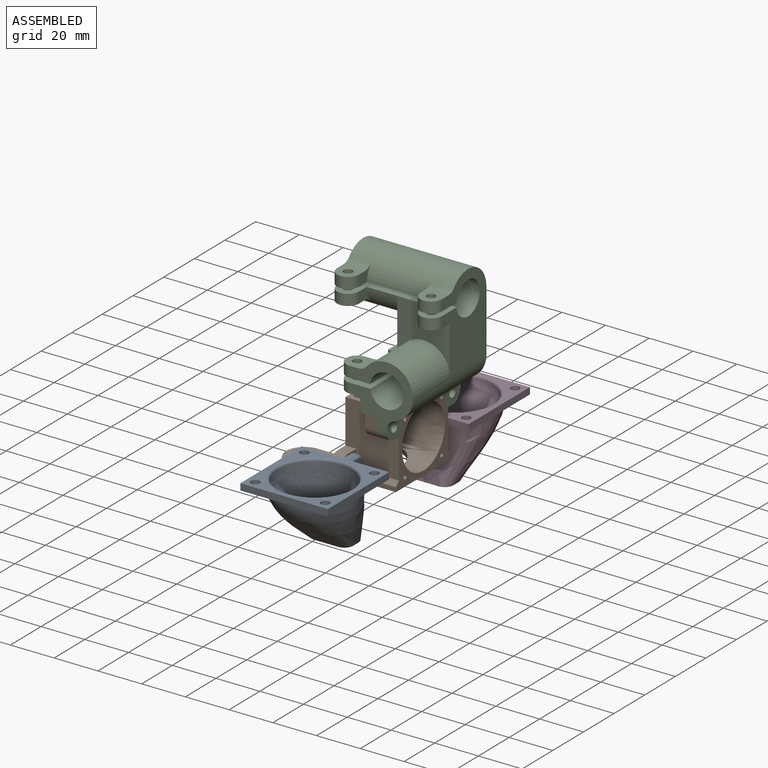
[diagram: assembled view]
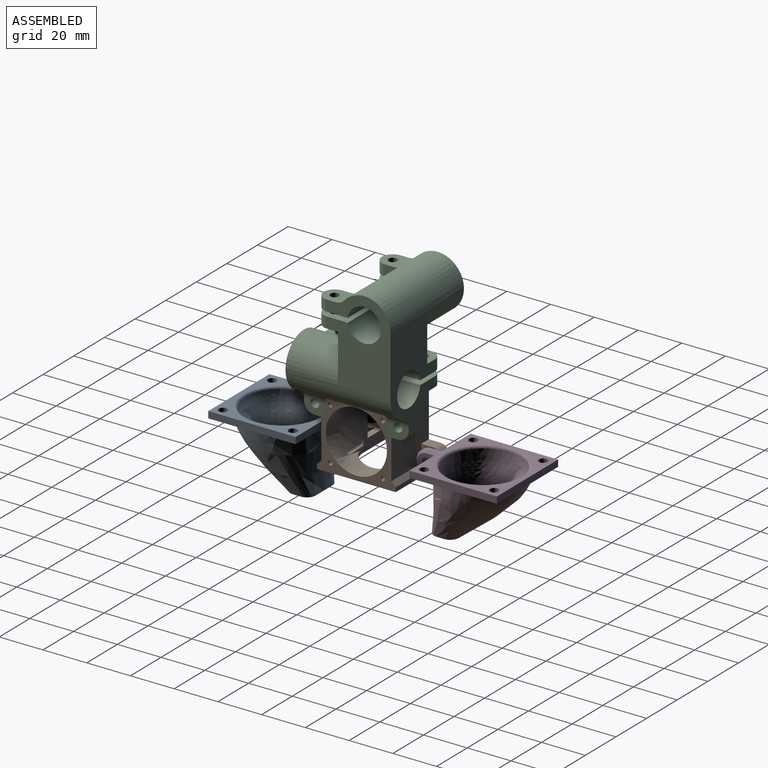
[diagram: assembled view, second angle]
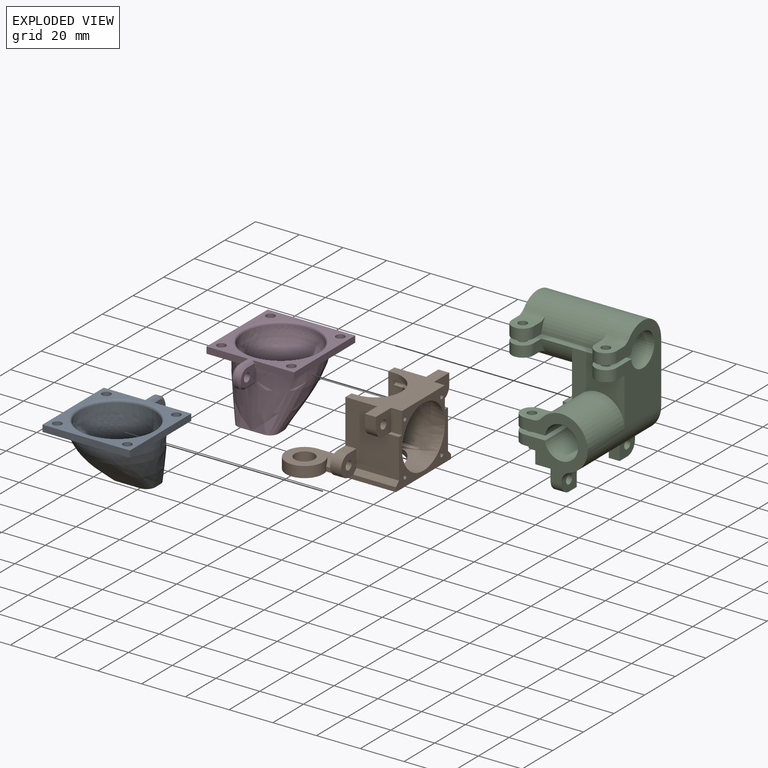
[diagram: exploded view]
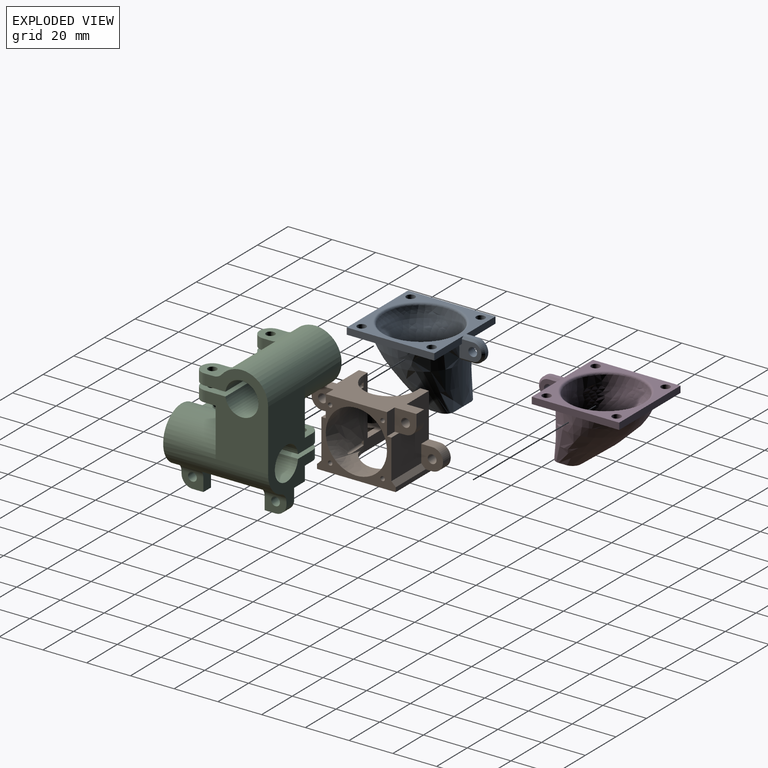
[diagram: exploded view, second angle]
ASSEMBLY  parts=4 mates=3
PART A: 26 faces, bbox 50.5x40.5x30.5 mm
  f0: plane 19x3mm, normal (-1,0,0), area 54.5mm2, adj f1,f3,f10,f16,f20
  f1: plane 45x40mm, normal (0,0,-1), area 543.7mm2, adj f0,f2,f3,f4,f5,f6,f7,f8
  f2: plane 40x3mm, normal (1,0,0), area 120mm2, adj f1,f3,f8,f10
  f3: plane 40x3mm, normal (0,1,0), area 120mm2, adj f0,f1,f2,f10
  f4: plane 19x3mm, normal (-1,0,0), area 54.5mm2, adj f1,f8,f10,f15,f23
  f5: cylinder r=2mm len=4mm, axis (0,0,-1), area 37.7mm2, adj f1,f10
  f6: cylinder r=2mm len=4mm, axis (0,0,-1), area 37.7mm2, adj f1,f10
  f7: cylinder r=2mm len=4mm, axis (0,0,-1), area 37.7mm2, adj f1,f10
  f8: plane 40x3mm, normal (0,-1,0), area 120mm2, adj f1,f2,f4,f10
  f9: cylinder r=2mm len=4mm, axis (0,0,-1), area 37.7mm2, adj f1,f10
  f10: plane 40x40mm, normal (0,0,1), area 429.2mm2, adj f0,f2,f3,f4,f5,f6,f7,f8
  f11: plane 19.51x12.01mm, normal (0,0,1), area 95.7mm2, adj f12,f13
  f12: bspline ~38.02x38mm, area 2753.2mm2, adj f10,f11,f15,f16,f17,f22,f25
  f13: bspline ~34.19x34mm, area 2621.2mm2, adj f11,f14
  f14: bspline ~35.95x35.94mm, area 167.8mm2, adj f1,f13
  f15: plane 10.14x8.03mm, normal (0,-1,0), area 59.2mm2, adj f4,f10,f12,f19,f23,f24,f25
  f16: plane 10.14x8.03mm, normal (0,1,0), area 59.2mm2, adj f0,f10,f12,f19,f20,f21,f22
  f17: plane 6.03x2mm, normal (0,0,1), area 12mm2, adj f12,f18,f22,f25
  f18: cylinder r=5mm len=10mm, axis (0,-1,0), area 31.4mm2, adj f1,f17,f21,f24
  f19: cylinder r=2mm len=4mm, axis (0,-1,0), area 50.3mm2, adj f15,f16
  f20: plane 5x1mm, normal (0,0.71,-0.71), area 7.1mm2, adj f0,f1,f16,f21
  f21: cone r=4mm half-angle=45deg, axis (0,-1,0), area 20mm2, adj f16,f18,f20,f22
  f22: plane 6.12x1.01mm, normal (0,0.71,0.71), area 8.6mm2, adj f12,f16,f17,f21
  f23: plane 5x1mm, normal (0,-0.71,-0.71), area 7.1mm2, adj f1,f4,f15,f24
  f24: cone r=4mm half-angle=45deg, axis (0,1,0), area 20mm2, adj f15,f18,f23,f25
  f25: plane 6.12x1.01mm, normal (0,-0.71,0.71), area 8.6mm2, adj f12,f15,f17,f24
PART B: 61 faces, bbox 55.2x48.7x32.2 mm
  f0: plane 30x14mm, normal (0,1,0), area 183.2mm2, adj f1,f9,f10,f27,f28,f34,f38,f57
  f1: plane 28x24.5mm, normal (1,0,0), area 546mm2, adj f0,f8,f9,f17,f21,f23,f27,f29
  f2: plane 28x24.5mm, normal (-1,0,0), area 546mm2, adj f8,f9,f13,f20,f24,f26,f31,f32
  f3: cylinder r=12mm len=24mm, axis (0,0,-1), area 77.3mm2, adj f10,f12,f14,f41,f42,f43,f47,f52
  f4: cylinder r=12mm len=0.3mm, axis (0,0,-1), area 0mm2, adj f10,f42,f47
  f5: cylinder r=12mm len=24mm, axis (0,0,-1), area 77.3mm2, adj f9,f10,f12,f41,f42,f44,f45,f50
  f6: cylinder r=12mm len=0.3mm, axis (0,0,-1), area 0mm2, adj f12,f41,f50
  f7: cylinder r=12mm len=0.3mm, axis (0,0,-1), area 0mm2, adj f12,f41,f52
  f8: plane 36x32mm, normal (0,-1,0), area 367.7mm2, adj f1,f2,f9,f14,f15,f17,f19,f20
  f9: plane 48x24.5mm, normal (0,0,-1), area 557.8mm2, adj f0,f1,f2,f5,f8,f10,f12,f13
  f10: plane 32x18mm, normal (-1,0,0), area 157.5mm2, adj f0,f3,f4,f5,f9,f11,f14,f42
  f11: cylinder r=12mm len=0.3mm, axis (0,0,-1), area 0mm2, adj f10,f42,f45
  f12: plane 32x2.5mm, normal (1,0,0), area 80mm2, adj f3,f5,f6,f7,f9,f13,f14,f41
  f13: plane 32x14mm, normal (0,1,0), area 208.7mm2, adj f2,f9,f12,f14,f30,f31,f33,f37
  f14: plane 48.5x47mm, normal (0,0,1), area 816.4mm2, adj f3,f8,f10,f12,f13,f53,f54,f55
  f15: plane 10x5mm, normal (1,0,0), area 50mm2, adj f8,f9,f16,f17
  f16: plane 10x10mm, normal (0,-1,0), area 82.1mm2, adj f9,f15,f17,f22,f23,f35,f40
  f17: plane 5x2mm, normal (0,0,-1), area 10mm2, adj f1,f8,f15,f16
  f18: plane 10x10mm, normal (0,-1,0), area 82.1mm2, adj f9,f19,f20,f25,f26,f36,f39
  f19: plane 10x5mm, normal (-1,0,0), area 50mm2, adj f8,f9,f18,f20
  f20: plane 5x2mm, normal (0,0,-1), area 10mm2, adj f2,f8,f18,f19
  f21: plane 10x8mm, normal (0,1,0), area 62.1mm2, adj f1,f9,f22,f23,f35,f40
  f22: plane 5x5mm, normal (1,0,0), area 25mm2, adj f9,f16,f21,f35
  f23: plane 5x3mm, normal (0,0,1), area 15mm2, adj f1,f16,f21,f35
  f24: plane 10x8mm, normal (0,1,0), area 62.1mm2, adj f2,f9,f25,f26,f36,f39
  f25: plane 5x5mm, normal (-1,0,0), area 25mm2, adj f9,f18,f24,f36
  f26: plane 5x3mm, normal (0,0,1), area 15mm2, adj f2,f18,f24,f36
  f27: plane 5x5mm, normal (0,0,-1), area 25mm2, adj f0,f1,f29,f34
  f28: plane 5x3mm, normal (0,0,1), area 15mm2, adj f0,f29,f34,f54
  f29: plane 10x10mm, normal (0,-1,0), area 74.7mm2, adj f1,f27,f28,f34,f38,f58
  f30: plane 5x3mm, normal (0,0,1), area 15mm2, adj f13,f32,f33,f53
  f31: plane 5x5mm, normal (0,0,-1), area 25mm2, adj f2,f13,f32,f33
  f32: plane 10x10mm, normal (0,-1,0), area 74.7mm2, adj f2,f30,f31,f33,f37,f59
  f33: cylinder r=5mm len=10mm, axis (0,-1,0), area 78.5mm2, adj f13,f30,f31,f32
  f34: cylinder r=5mm len=10mm, axis (0,1,0), area 78.5mm2, adj f0,f27,f28,f29
  f35: cylinder r=5mm len=5mm, axis (0,-1,0), area 39.3mm2, adj f16,f21,f22,f23
  f36: cylinder r=5mm len=5mm, axis (0,1,0), area 39.3mm2, adj f18,f24,f25,f26
  f37: cylinder r=2mm len=5mm, axis (0,1,0), area 62.8mm2, adj f13,f32
  f38: cylinder r=2mm len=5mm, axis (0,1,0), area 62.8mm2, adj f0,f29
  f39: cylinder r=2mm len=5mm, axis (0,1,0), area 62.8mm2, adj f18,f24
  f40: cylinder r=2mm len=5mm, axis (0,1,0), area 62.8mm2, adj f16,f21
  f41: bspline ~30x22mm, area 513.2mm2, adj f3,f5,f6,f7,f8,f12,f43,f44
  f42: bspline ~30x22mm, area 513.2mm2, adj f3,f4,f5,f8,f10,f11,f43,f44
  f43: bspline ~23.57x19.73mm, area 273.1mm2, adj f3,f8,f41,f42
  f44: bspline ~23.57x19.73mm, area 273.1mm2, adj f5,f8,f41,f42
  f45: cylinder r=1mm len=22mm, axis (0,-1,0), area 110.3mm2, adj f5,f8,f11,f42,f46
  f46: plane 2x1mm, normal (0,-1,0), area 1.6mm2, adj f10,f45
  f47: cylinder r=1mm len=22mm, axis (0,-1,0), area 111.7mm2, adj f3,f4,f8,f42,f48
  f48: plane 2x1mm, normal (0,-1,0), area 1.6mm2, adj f10,f47
  f49: plane 2x1mm, normal (0,-1,0), area 1.6mm2, adj f12,f50
  f50: cylinder r=1mm len=22mm, axis (0,-1,0), area 111.2mm2, adj f5,f6,f8,f41,f49
  f51: plane 2x1mm, normal (0,-1,0), area 1.6mm2, adj f12,f52
  f52: cylinder r=1mm len=22mm, axis (0,-1,0), area 110.7mm2, adj f3,f7,f8,f41,f51
  f53: plane 24.5x2mm, normal (-1,0,0), area 49mm2, adj f8,f13,f14,f30,f59
  f54: plane 31.88x2mm, normal (1,0,0), area 63.8mm2, adj f8,f14,f28,f55,f58,f60
  f55: cylinder r=8.5mm len=17mm, axis (0,0,1), area 218.1mm2, adj f10,f14,f54,f57,f60
  f56: cylinder r=4.5mm len=9mm, axis (0,0,1), area 141.4mm2, adj f14,f57
  f57: plane 24x17mm, normal (0,0,-1), area 196.4mm2, adj f0,f10,f55,f56,f60
  f58: plane 19.5x2mm, normal (0.71,0,-0.71), area 55.2mm2, adj f1,f8,f29,f54
  f59: plane 19.5x2mm, normal (-0.71,0,-0.71), area 55.2mm2, adj f2,f8,f32,f53
  f60: plane 9.19x3.17mm, normal (0.71,0,-0.71), area 34.2mm2, adj f0,f54,f55,f57
PART C: 88 faces, bbox 48x48x62 mm
  f0: plane 29x29mm, normal (0,-1,0), area 372.7mm2, adj f10,f11,f12,f14,f16,f19,f57,f63
  f1: plane 12.75x11mm, normal (-1,0,0), area 84.7mm2, adj f10,f14,f21,f22,f23,f24,f25,f39
  f2: cylinder r=2mm len=4.5mm, axis (0,0,1), area 56.5mm2, adj f10,f73
  f3: cylinder r=2mm len=4.5mm, axis (0,0,1), area 56.5mm2, adj f10,f69
  f4: cylinder r=12mm len=48mm, axis (1,0,0), area 2418.9mm2, adj f6,f7,f8,f13,f40,f41,f42,f45
  f5: plane 27x24mm, normal (0,-1,0), area 371.8mm2, adj f6,f7,f11,f16,f40,f46,f47
  f6: plane 27x24mm, normal (-1,0,0), area 371.8mm2, adj f4,f5,f13,f16,f17,f18,f40
  f7: plane 40x29mm, normal (1,0,0), area 761.9mm2, adj f4,f5,f9,f11,f13,f40,f41,f44
  f8: plane 29x24mm, normal (-1,0,0), area 320.1mm2, adj f4,f9,f40,f41,f43,f48,f54,f56
  f9: cylinder r=7.6mm len=48mm, axis (-1,0,0), area 2195.8mm2, adj f7,f8,f40,f41
  f10: plane 48x14.47mm, normal (0,0,1), area 503.6mm2, adj f0,f1,f2,f3,f12,f13,f15,f21
  f11: cylinder r=12mm len=48mm, axis (0,1,0), area 1639.4mm2, adj f0,f5,f7,f13,f14,f16,f20,f57
  f12: cylinder r=7.6mm len=48mm, axis (0,-1,0), area 2195.8mm2, adj f0,f10,f13,f16
  f13: plane 45x29mm, normal (0,1,0), area 814.5mm2, adj f4,f6,f7,f10,f11,f12,f14,f16
  f14: plane 48x22mm, normal (0,0,-1), area 659.8mm2, adj f0,f1,f11,f13,f15,f25,f66,f67
  f15: plane 12.75x11mm, normal (-1,0,0), area 84.7mm2, adj f10,f14,f21,f22,f23,f24,f25,f38
  f16: plane 48x14.47mm, normal (0,0,-1), area 367.2mm2, adj f0,f5,f6,f11,f12,f13,f17,f20
  f17: plane 5x5mm, normal (0,-1,0), area 25mm2, adj f6,f16,f18,f62
  f18: plane 10x10mm, normal (0,0,1), area 76.7mm2, adj f6,f13,f17,f27,f62
  f19: plane 10x9.04mm, normal (0,0,1), area 67.1mm2, adj f0,f20,f26,f57,f63
  f20: plane 7.85x6.76mm, normal (0,1,0), area 29mm2, adj f11,f16,f19,f57,f63
  f21: cylinder r=8.25mm len=16.5mm, axis (0,0,-1), area 58.3mm2, adj f1,f10,f15,f22
  f22: plane 16.5x8.25mm, normal (0,0,1), area 45.6mm2, adj f1,f15,f21,f23
  f23: cylinder r=6.25mm len=12.5mm, axis (0,0,-1), area 112.9mm2, adj f1,f15,f22,f24
  f24: plane 16.5x8.25mm, normal (0,0,-1), area 45.6mm2, adj f1,f15,f23,f25
  f25: cylinder r=8.25mm len=16.5mm, axis (0,0,-1), area 77.8mm2, adj f1,f14,f15,f24
  f26: cylinder r=2mm len=5mm, axis (0,0,1), area 62.8mm2, adj f16,f19
  f27: cylinder r=2mm len=5mm, axis (0,0,1), area 62.8mm2, adj f16,f18
  f28: plane 9x6mm, normal (1,0,0), area 41.4mm2, adj f10,f29,f31,f32,f39
  f29: plane 9x4mm, normal (0,1,0), area 36mm2, adj f10,f28,f30,f32
  f30: plane 9x6mm, normal (-1,0,0), area 54mm2, adj f10,f29,f31,f32
  f31: plane 9x4mm, normal (0,-1,0), area 36mm2, adj f10,f28,f30,f32
  f32: plane 6x4mm, normal (0,0,1), area 24mm2, adj f28,f29,f30,f31
  f33: plane 9x6mm, normal (1,0,0), area 41.4mm2, adj f10,f34,f36,f37,f38
  f34: plane 9x4mm, normal (0,1,0), area 36mm2, adj f10,f33,f35,f37
  f35: plane 9x6mm, normal (-1,0,0), area 54mm2, adj f10,f34,f36,f37
  f36: plane 9x4mm, normal (0,-1,0), area 36mm2, adj f10,f33,f35,f37
  f37: plane 6x4mm, normal (0,0,1), area 24mm2, adj f33,f34,f35,f36
  f38: cylinder r=2mm len=6mm, axis (-1,0,0), area 75.4mm2, adj f15,f33
  f39: cylinder r=2mm len=6mm, axis (-1,0,0), area 75.4mm2, adj f1,f28
  f40: plane 48x14.47mm, normal (0,0,1), area 367.2mm2, adj f4,f5,f6,f7,f8,f9,f46,f49
  f41: plane 48x14.47mm, normal (0,0,-1), area 366.6mm2, adj f4,f7,f8,f9,f42,f45,f52,f53
  f42: plane 7.85x6.76mm, normal (1,0,0), area 29mm2, adj f4,f41,f43,f56,f61
  f43: plane 10x9.04mm, normal (0,0,1), area 67.1mm2, adj f8,f42,f53,f56,f61
  f44: plane 10x9.04mm, normal (0,0,1), area 67.1mm2, adj f7,f45,f52,f55,f59
  f45: plane 7.85x6.76mm, normal (-1,0,0), area 29mm2, adj f4,f41,f44,f55,f59
  f46: plane 5x5mm, normal (-1,0,0), area 25mm2, adj f5,f40,f47,f58
  f47: plane 10x10mm, normal (0,0,-1), area 76.7mm2, adj f5,f7,f46,f51,f58
  f48: plane 10x9.04mm, normal (0,0,-1), area 67.1mm2, adj f8,f49,f50,f54,f60
  f49: plane 7.85x6.76mm, normal (1,0,0), area 29mm2, adj f4,f40,f48,f54,f60
  f50: cylinder r=2mm len=5mm, axis (0,0,1), area 62.8mm2, adj f40,f48
  f51: cylinder r=2mm len=5mm, axis (0,0,1), area 62.8mm2, adj f40,f47
  f52: cylinder r=2mm len=5mm, axis (0,0,1), area 62.8mm2, adj f41,f44
  f53: cylinder r=2mm len=5mm, axis (0,0,1), area 62.8mm2, adj f41,f43
  f54: cylinder r=5mm len=10mm, axis (1,0,0), area 43.4mm2, adj f4,f8,f48,f49
  f55: cylinder r=5mm len=10mm, axis (1,0,0), area 43.4mm2, adj f4,f7,f44,f45
  f56: cylinder r=5mm len=10mm, axis (1,0,0), area 43.4mm2, adj f4,f8,f42,f43
  f57: cylinder r=5mm len=10mm, axis (0,1,0), area 43.4mm2, adj f0,f11,f19,f20
  f58: cylinder r=5mm len=10mm, axis (0,0,1), area 78.5mm2, adj f7,f40,f46,f47
  f59: cylinder r=5mm len=10mm, axis (0,0,1), area 78.5mm2, adj f7,f41,f44,f45
  f60: cylinder r=5mm len=10mm, axis (0,0,-1), area 78.5mm2, adj f8,f40,f48,f49
  f61: cylinder r=5mm len=10mm, axis (0,0,1), area 78.5mm2, adj f8,f41,f42,f43
  f62: cylinder r=5mm len=10mm, axis (0,0,-1), area 78.5mm2, adj f13,f16,f17,f18
  f63: cylinder r=5mm len=10mm, axis (0,0,1), area 78.5mm2, adj f0,f16,f19,f20
  f64: cylinder r=5mm len=5mm, axis (0,0,-1), area 35.3mm2, adj f1,f10,f13,f73
  f65: cylinder r=5mm len=5mm, axis (0,0,-1), area 35.3mm2, adj f0,f10,f15,f69
  f66: plane 6.5x5mm, normal (0,-1,0), area 32.5mm2, adj f14,f15,f67,f69
  f67: cylinder r=5mm len=6.5mm, axis (0,0,-1), area 51.1mm2, adj f14,f66,f68,f69
  f68: plane 6.5x5mm, normal (-1,0,0), area 32.5mm2, adj f0,f14,f67,f69
  f69: plane 10x10mm, normal (0,0,-1), area 76.7mm2, adj f0,f3,f15,f65,f66,f67,f68
  f70: plane 6.5x5mm, normal (-1,0,0), area 32.5mm2, adj f13,f14,f71,f73
  f71: cylinder r=5mm len=6.5mm, axis (0,0,-1), area 51.1mm2, adj f14,f70,f72,f73
  f72: plane 6.5x5mm, normal (0,1,0), area 32.5mm2, adj f1,f14,f71,f73
  f73: plane 10x10mm, normal (0,0,-1), area 76.7mm2, adj f1,f2,f13,f64,f70,f71,f72
  f74: plane 10.53x8.53mm, normal (0,1,0), area 53.2mm2, adj f11,f14,f75,f76,f77,f85
  f75: plane 10x5.75mm, normal (1,0,0), area 42.9mm2, adj f0,f74,f77,f82,f85,f86
  f76: plane 10x10mm, normal (-1,0,0), area 82.1mm2, adj f0,f14,f74,f77,f82,f86
  f77: plane 5x5mm, normal (0,0,-1), area 25mm2, adj f74,f75,f76,f82
  f78: plane 10x5.75mm, normal (1,0,0), area 42.9mm2, adj f13,f79,f81,f83,f84,f87
  f79: plane 10.53x8.53mm, normal (0,-1,0), area 53.2mm2, adj f11,f14,f78,f80,f81,f84
  f80: plane 10x10mm, normal (-1,0,0), area 82.1mm2, adj f13,f14,f79,f81,f83,f87
  f81: plane 5x5mm, normal (0,0,-1), area 25mm2, adj f78,f79,f80,f83
  f82: cylinder r=5mm len=5mm, axis (-1,0,0), area 39.3mm2, adj f0,f75,f76,f77
  f83: cylinder r=5mm len=5mm, axis (1,0,0), area 39.3mm2, adj f13,f78,f80,f81
  f84: cylinder r=5mm len=10mm, axis (0,1,0), area 60.2mm2, adj f11,f13,f78,f79,f87
  f85: cylinder r=5mm len=10mm, axis (0,1,0), area 60.2mm2, adj f0,f11,f74,f75,f86
  f86: cylinder r=2mm len=5.16mm, axis (1,0,0), area 63.2mm2, adj f75,f76,f85
  f87: cylinder r=2mm len=5.16mm, axis (1,0,0), area 63.2mm2, adj f78,f80,f84
PART D: same geometry as A
PLACE A rot(axis=(-0.71,0.71,0),180deg) t=(-31.49,-50.5,-25.24)mm
PLACE B rot(axis=(-0.71,0.71,0),180deg) t=(-35.99,-4.5,-5.24)mm
PLACE C t=(-13.99,7.5,6.76)mm
PLACE D rot(axis=(-0.71,-0.71,0),180deg) t=(-31.49,41.5,-25.24)mm
MATE revolute B.f16 <-> C.f76  axis (1,0,0) through (-18.99,-23.5,-15.24)mm
MATE revolute D.f21 <-> B.f33  axis (-1,0,0) through (-33.49,16.5,-30.24)mm
MATE fastened A.f21 <-> B.f34  axis (-1,0,0) through (-33.49,-25.5,-30.24)mm
